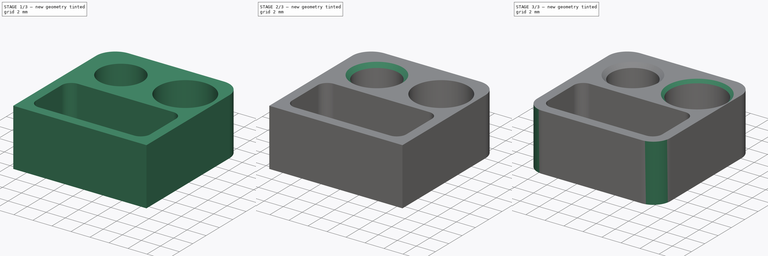
[diagram: build sequence overview — one tinted view per stage of 3, left to right]
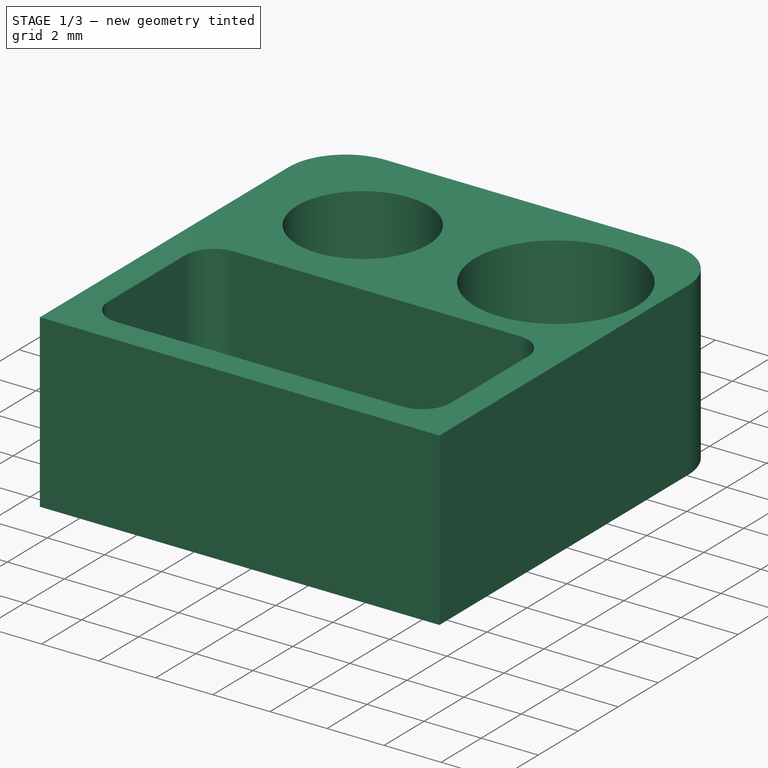
[diagram: stage 1 of 3 — iso view after this stage's code; geometry added in this stage tinted green]
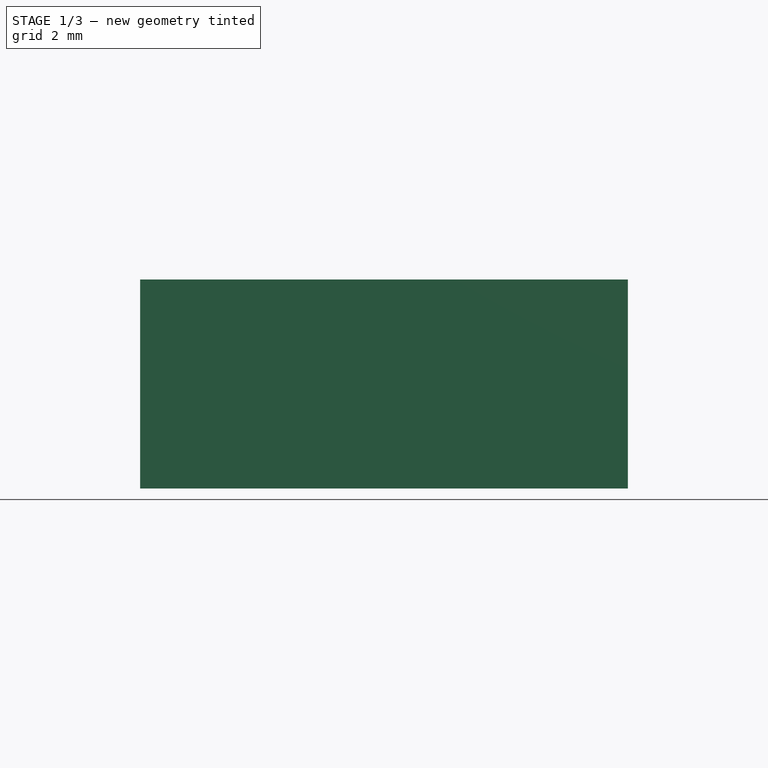
[diagram: stage 1 of 3 — front view after this stage's code; geometry added in this stage tinted green]
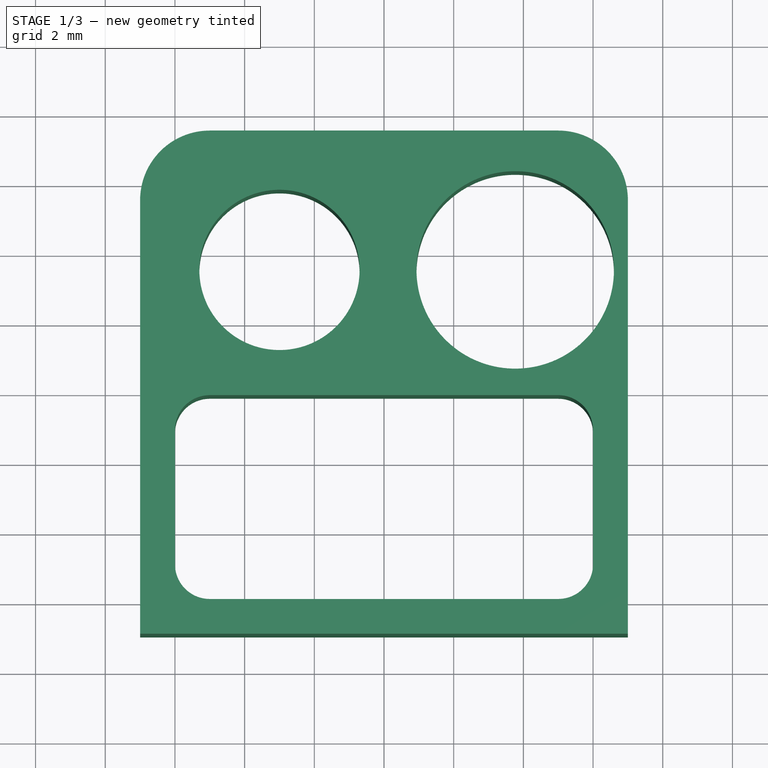
[diagram: stage 1 of 3 — top view after this stage's code; geometry added in this stage tinted green]
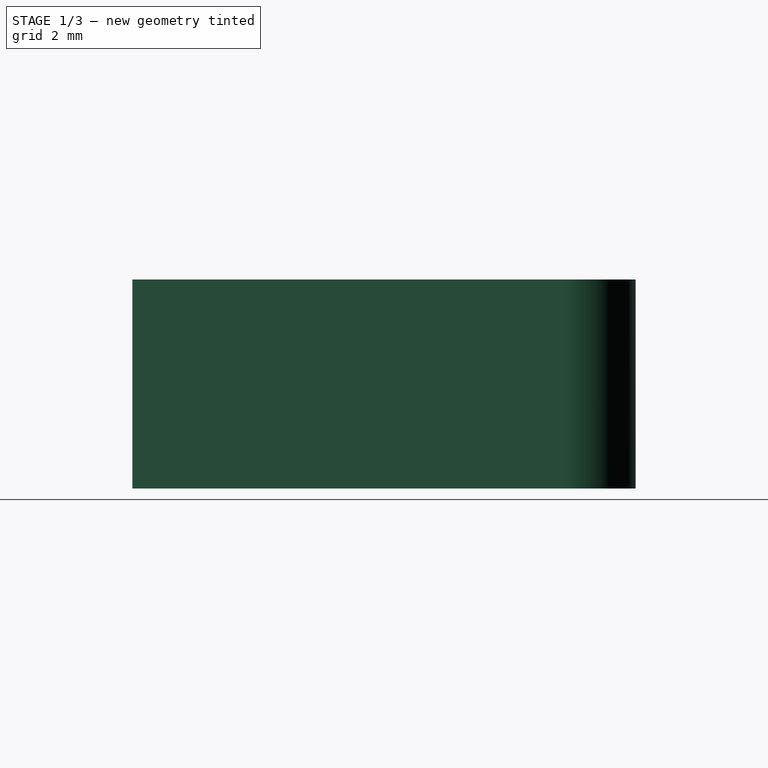
[diagram: stage 1 of 3 — right view after this stage's code; geometry added in this stage tinted green]
FCSTD DOCUMENT  (FreeCAD 1.2R20260429 (Git shallow))
Label: color-sensor-asm
License: All rights reserved
objects: App::Point×3, PartDesign::ShapeBinder×3, App::Part×2, PartDesign::Fillet×2, PartDesign::Chamfer×2, App::VRMLObject×1, Sketcher::SketchObject×1, PartDesign::Pad×1, PartDesign::Body×1
note: 21 computed .brp shape members not serialized (recipe doc carries the construction recipe); baked Part::Feature solids carry a one-line shape summary decoded from their .brp

FEATURE [App::Point] Origin001  label="Origine"
  Role = Origin
FEATURE [App::VRMLObject] color_sensor_2026  label="color-sensor-2026"
FEATURE [App::Part] Part  label="PCB-Color-Sensor"
  Group = -> [color_sensor_2026]
  Origin = -> Origin006
FEATURE [App::Point] Origin007  label="Origine006"
  Role = Origin
FEATURE [PartDesign::ShapeBinder] ShapeBinder
  TraceSupport = false
FEATURE [PartDesign::ShapeBinder] ShapeBinder001
  Placement = pos=(2.066,13.5,-0.405) rot=(0,0,1;0rad)
  TraceSupport = false
FEATURE [PartDesign::ShapeBinder] ShapeBinder002
  Placement = pos=(0,6.98,1.595) rot=(0,0,1;3.14159rad)
  TraceSupport = false
FEATURE [Sketcher::SketchObject] Sketch
  ArcFitTolerance = 1e-06
  AttachmentSupport = -> [Origin]
  ExternalGeometry = -> [ShapeBinder,ShapeBinder001,ShapeBinder002]
  ExternalTypes = [0,0,0,0,0,0,0,0,0,0]
  FullyConstrained = true
  MakeInternals = false
  MapMode = 5
  sketch-geometry (11):
    g0: Circle CenterX=-3 CenterY=13.5 CenterZ=0 NormalX=0 NormalY=0 NormalZ=1 AngleXU=0 Radius=2.3
    g1: Circle CenterX=3.766 CenterY=13.5 CenterZ=0 NormalX=0 NormalY=0 NormalZ=1 AngleXU=0 Radius=2.834
    g2: LineSegment StartX=7 StartY=15.5 StartZ=0 EndX=7 EndY=3.055 EndZ=0
    g3: LineSegment StartX=7 StartY=3.055 StartZ=0 EndX=-7 EndY=3.055 EndZ=0
    g4: LineSegment StartX=-7 StartY=3.055 StartZ=0 EndX=-7 EndY=15.5 EndZ=0
    g5: LineSegment [constr] StartX=-2.425 StartY=4.555 StartZ=0 EndX=2.425 EndY=9.405 EndZ=0
    g6: LineSegment StartX=-6 StartY=9.905 StartZ=0 EndX=-6 EndY=4.055 EndZ=0
    g7: LineSegment StartX=-6 StartY=4.055 StartZ=0 EndX=6 EndY=4.055 EndZ=0
    g8: LineSegment StartX=6 StartY=4.055 StartZ=0 EndX=6 EndY=9.905 EndZ=0
    g9: LineSegment StartX=6 StartY=9.905 StartZ=0 EndX=-6 EndY=9.905 EndZ=0
    g10: GeomPoint [constr] X=-3e-16 Y=6.98 Z=0
  constraints (26):
    c: Coincident(g0,g-3)
    c: Diameter(g0) = 4.6
    c: Coincident(g1,g-10)
    c: Coincident(g2,g-8)
    c: PointOnObject(g2,g-8)
    c: Coincident(g3,g2)
    c: PointOnObject(g3,g-4)
    c: Horizontal(g3)
    c: Coincident(g4,g3)
    c: Coincident(g4,g-5)
    c: Distance(g-12,g3) = 1.5
    c: Distance(g1,g2) = 0.4
    c: Coincident(g5,g-12)
    c: Coincident(g5,g-11)
    c: Coincident(g6,g7)
    c: Coincident(g7,g8)
    c: Coincident(g8,g9)
    c: Coincident(g9,g6)
    c: Vertical(g6)
    c: Vertical(g8)
    c: Horizontal(g7)
    c: Horizontal(g9)
    c: Symmetric(g8,g6,g10)
    c: Symmetric(g5,g5,g10)
    c: Distance(g8,g2) = 1
    c: Distance(g3,g7) = 1
FEATURE [PartDesign::Pad] Pad
  Direction = (0,0,1)
  Length = 6
  Length2 = 10
  Profile = -> Sketch
  ReferenceAxis = -> Sketch [N_Axis]
  Refine = true
  SideType = 0
  Suppressed = false
  Type = 0
  Type2 = 0
FEATURE [PartDesign::Fillet] Fillet
  Base = -> Pad [Edge26,Edge23,Edge19,Edge20]
  BaseFeature = -> Pad
  Radius = 1
  Refine = true
  SupportTransform = false
  Suppressed = false
  UseAllEdges = false
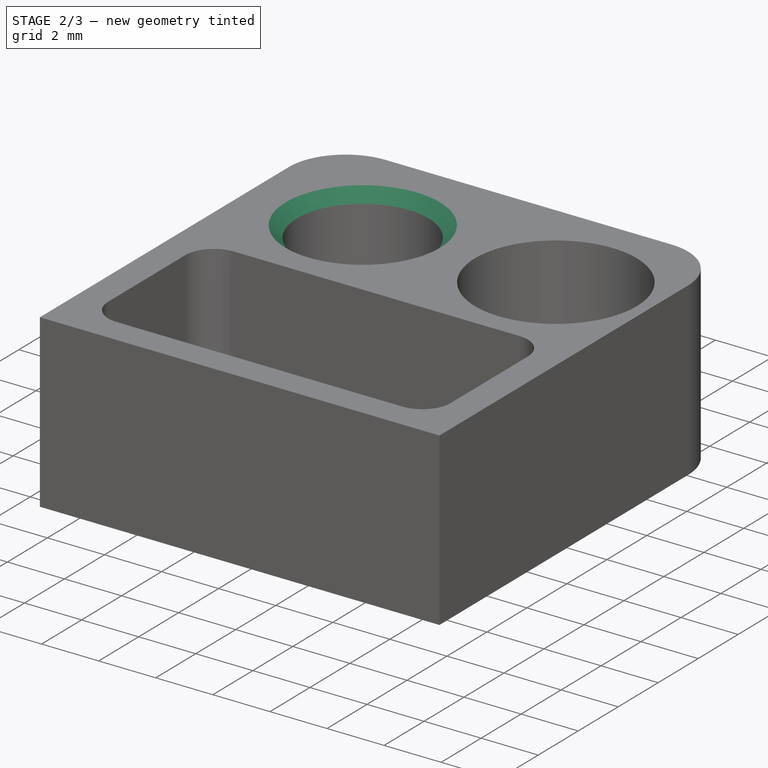
[diagram: stage 2 of 3 — iso view after this stage's code; geometry added in this stage tinted green]
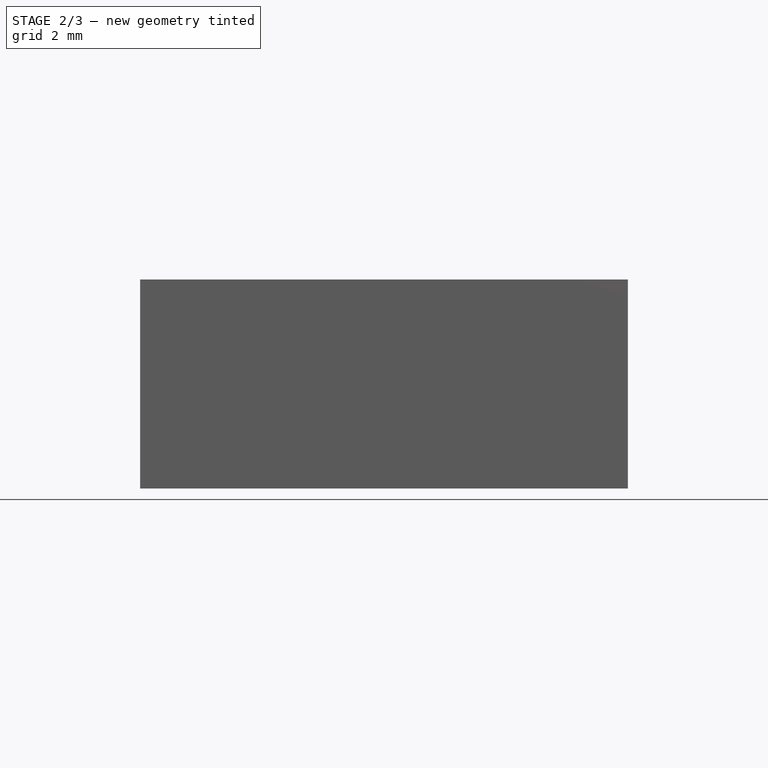
[diagram: stage 2 of 3 — front view after this stage's code; geometry added in this stage tinted green]
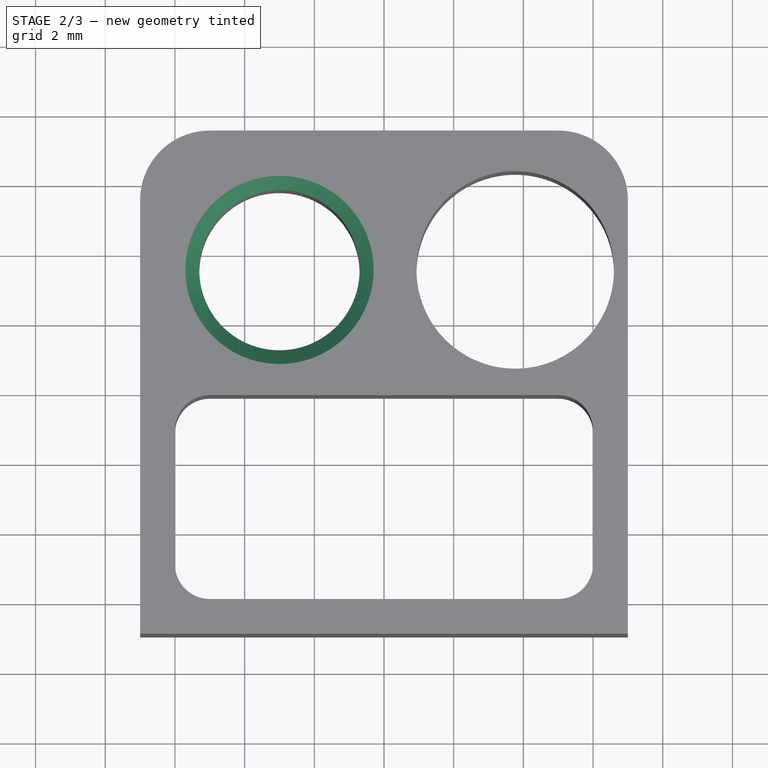
[diagram: stage 2 of 3 — top view after this stage's code; geometry added in this stage tinted green]
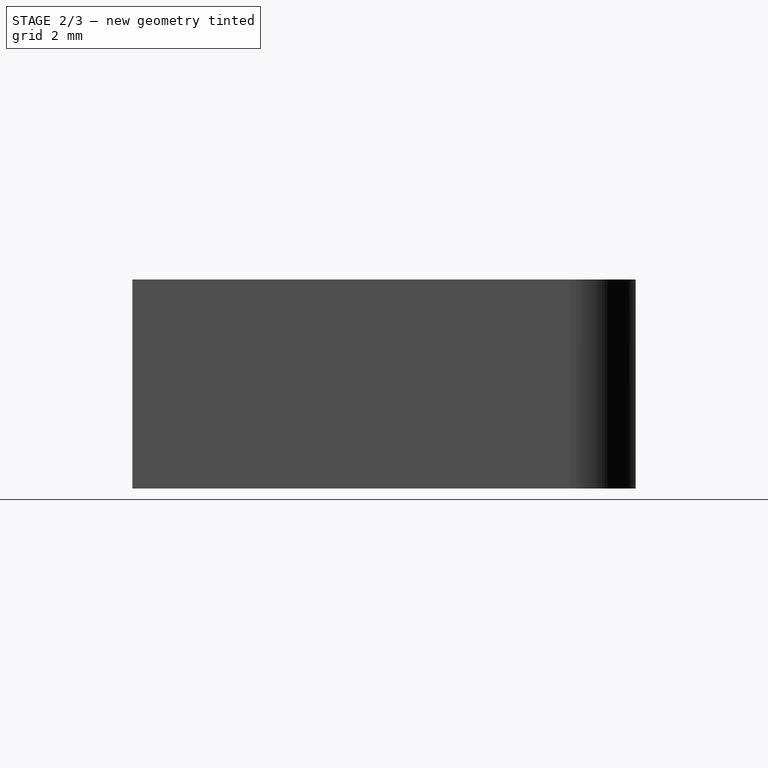
[diagram: stage 2 of 3 — right view after this stage's code; geometry added in this stage tinted green]
FEATURE [PartDesign::Chamfer] Chamfer
  Angle = 45
  Base = -> Fillet [Edge19,Edge36]
  BaseFeature = -> Fillet
  ChamferType = 0
  FlipDirection = false
  Refine = true
  Size = 0.4
  Size2 = 1
  SupportTransform = false
  Suppressed = false
  UseAllEdges = false
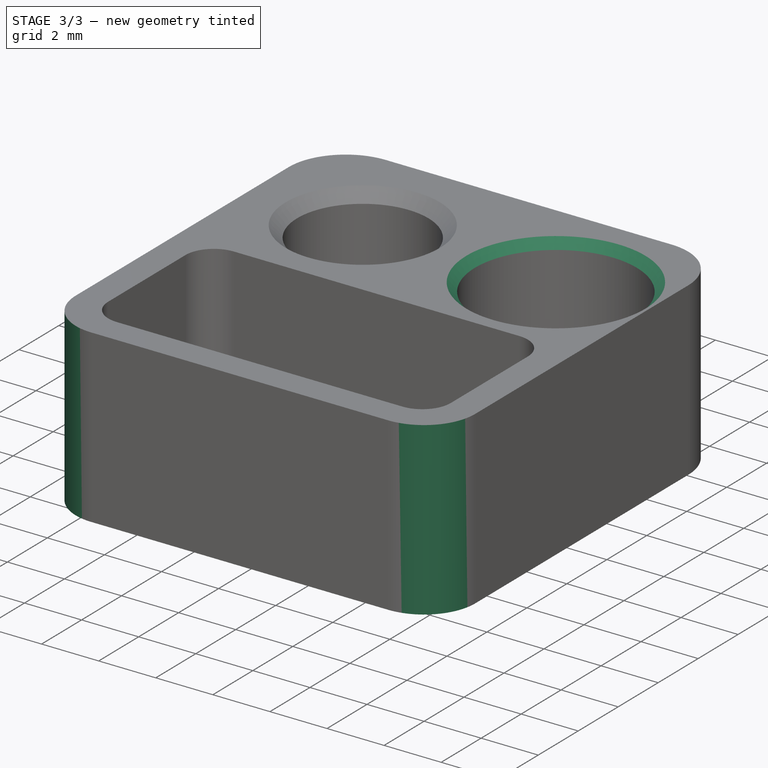
[diagram: stage 3 of 3 — iso view after this stage's code; geometry added in this stage tinted green]
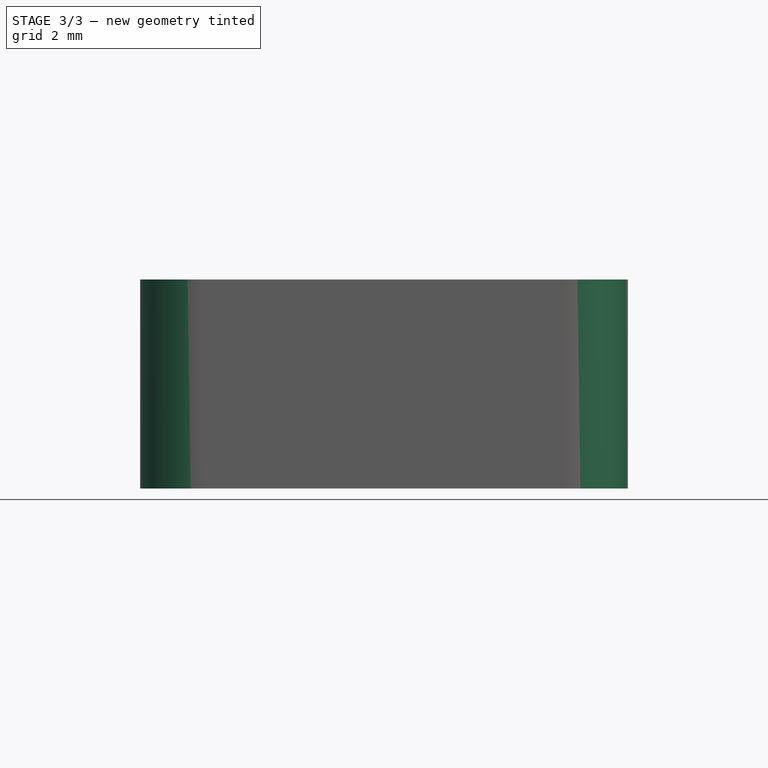
[diagram: stage 3 of 3 — front view after this stage's code; geometry added in this stage tinted green]
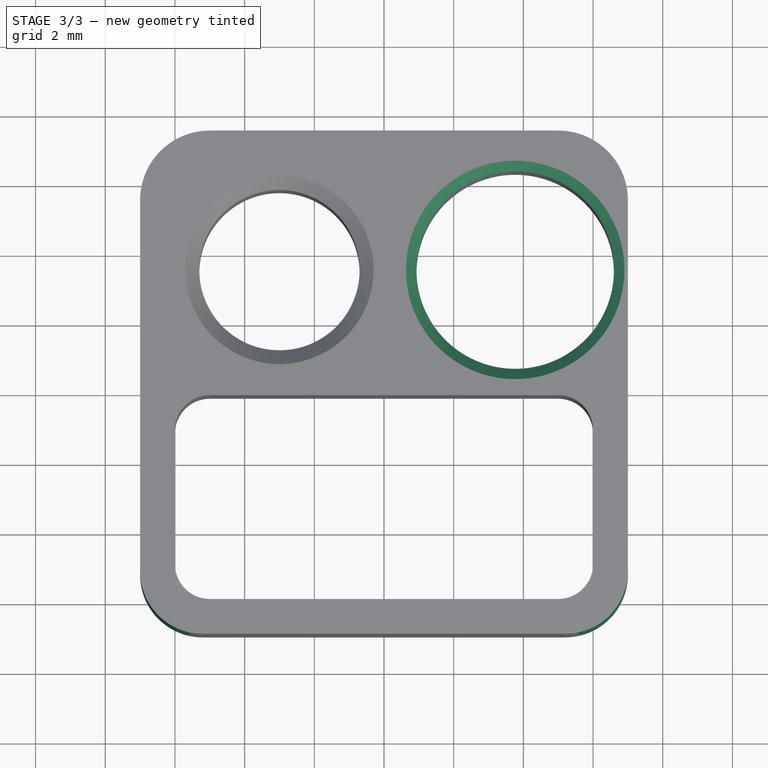
[diagram: stage 3 of 3 — top view after this stage's code; geometry added in this stage tinted green]
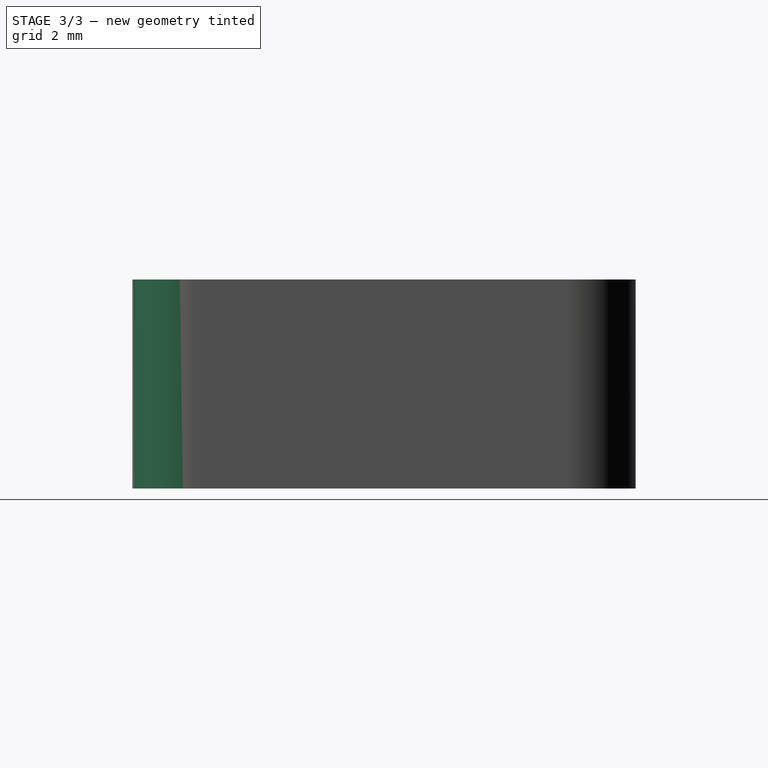
[diagram: stage 3 of 3 — right view after this stage's code; geometry added in this stage tinted green]
FEATURE [PartDesign::Chamfer] Chamfer001
  Angle = 45
  Base = -> Chamfer [Edge48]
  BaseFeature = -> Chamfer
  ChamferType = 0
  FlipDirection = false
  Refine = true
  Size = 0.3
  Size2 = 1
  SupportTransform = false
  Suppressed = false
  UseAllEdges = false
FEATURE [PartDesign::Fillet] Fillet001
  Base = -> Chamfer001 [Edge48,Edge47]
  BaseFeature = -> Chamfer001
  Radius = 1.8
  Refine = true
  SupportTransform = false
  Suppressed = false
  UseAllEdges = false
FEATURE [PartDesign::Body] Body  label="cache-color-sensor"
  AllowCompound = true
  Group = -> [Sketch,ShapeBinder,ShapeBinder001,ShapeBinder002,Pad,Fillet,Chamfer,Chamfer001,Fillet001]
  Origin = -> Origin
  Placement = pos=(0,0,0.8) rot=(0,0,1;0rad)
  Tip = -> Fillet001
FEATURE [App::Part] Part001  label="Color_Sensor_ASM"
  Group = -> [Body,Part]
  Origin = -> Origin008
FEATURE [App::Point] Origin009  label="Origine008"
  Role = Origin
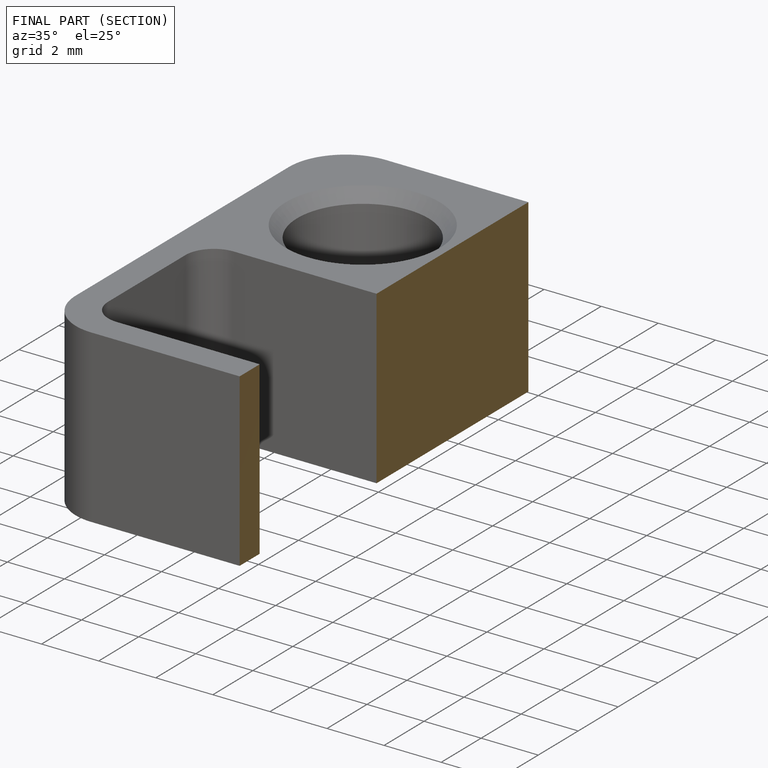
[diagram: finished part — half-section view (interior)]
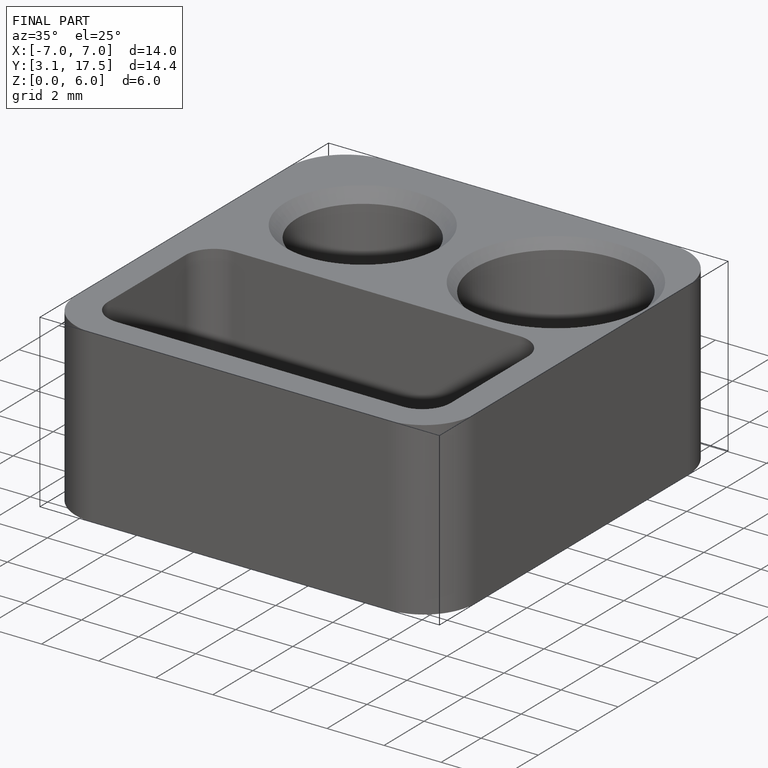
[diagram: finished part — iso view with bounding-box wireframe]
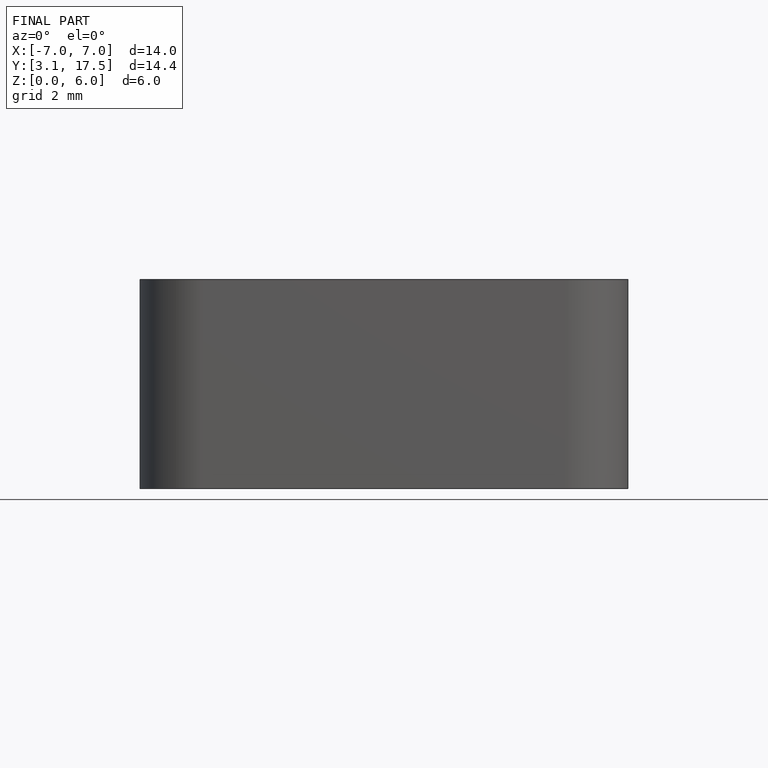
[diagram: finished part — front view with bounding-box wireframe]
